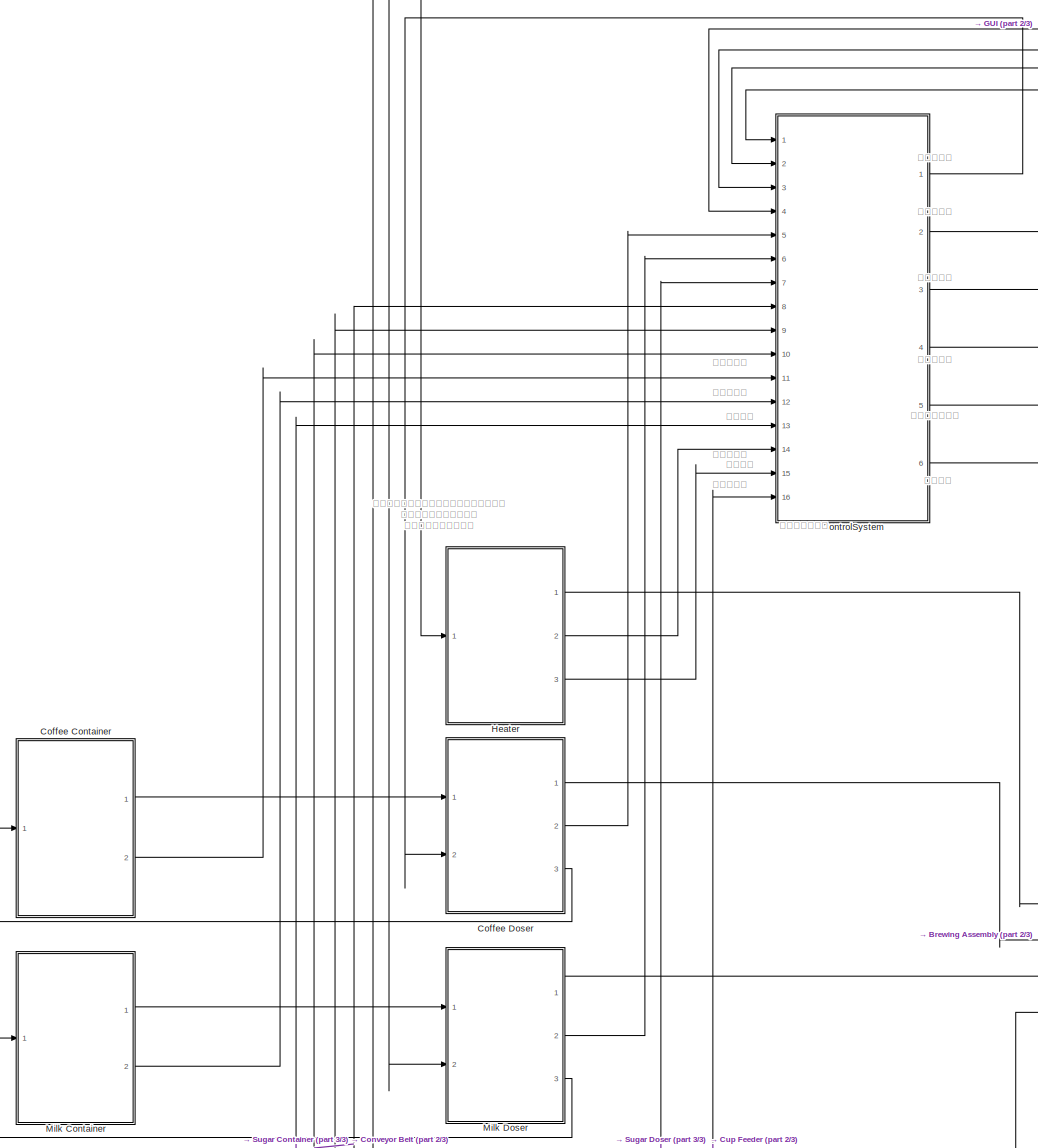
[diagram: root canvas - part 1/3, middle left region]
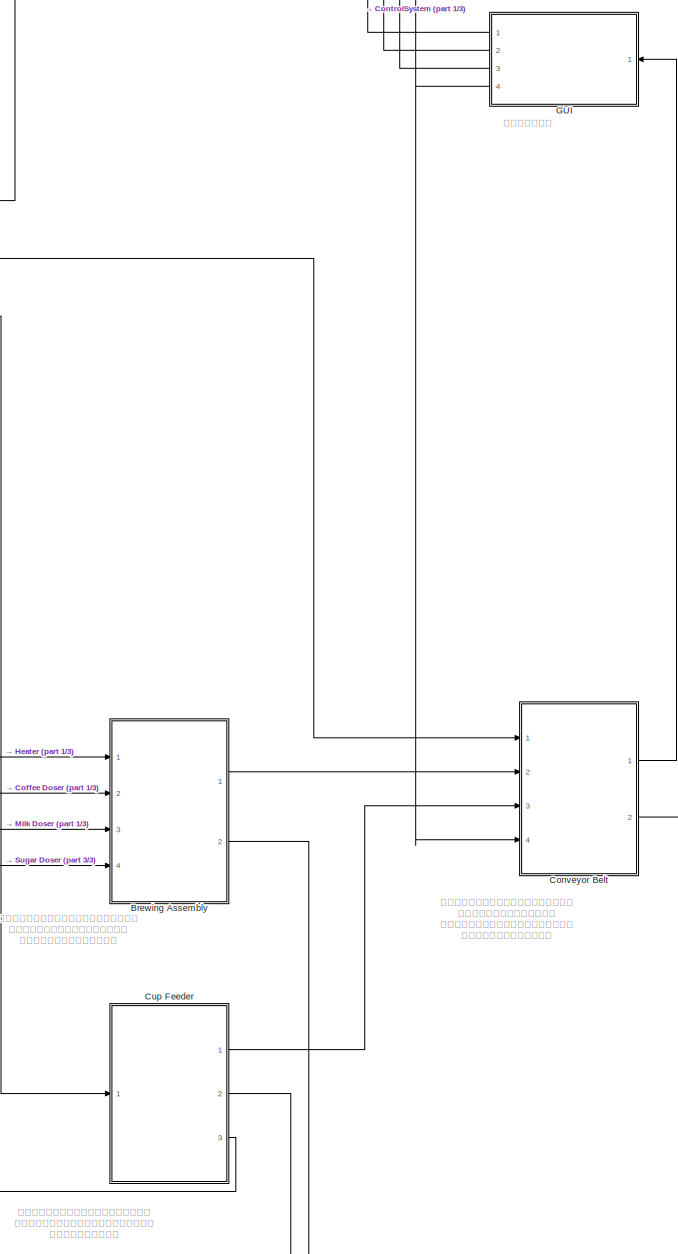
[diagram: root canvas - part 2/3, right side, full height]
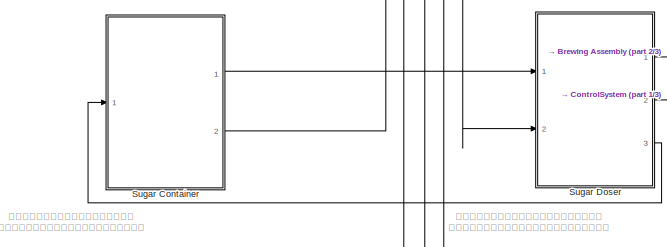
[diagram: root canvas - part 3/3, bottom left region]
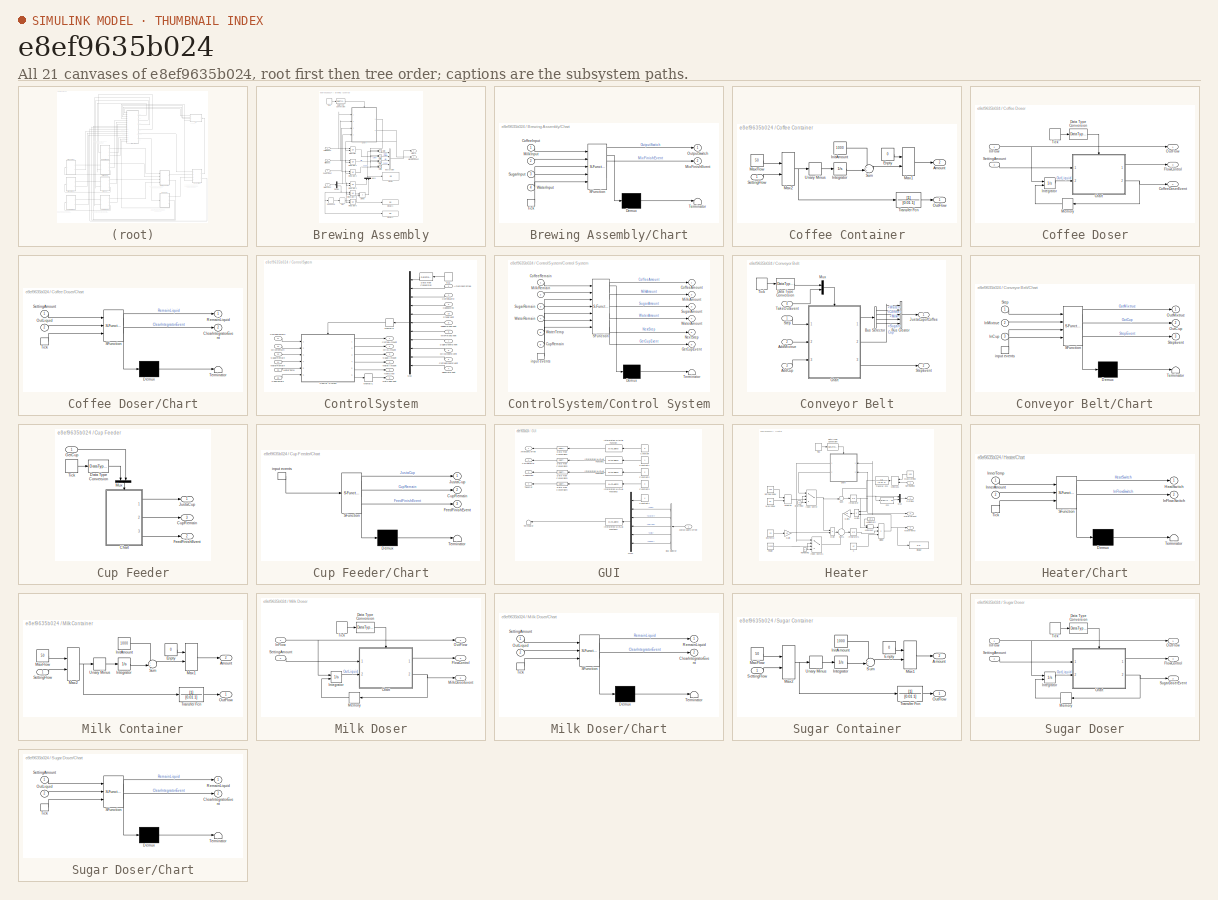
[diagram: thumbnail index - all 21 canvases of the model, root first then tree order]
MODEL slx_e8ef9635b024
KIND model
CONFIG AbsTol = auto
CONFIG EnableMultiTasking = off
CONFIG FixedStep = auto
CONFIG MaxStep = auto
CONFIG MinStep = auto
CONFIG RelTol = 1e-3
CONFIG SampleTimeConstraint = Unconstrained
CONFIG Solver = ode45
CONFIG SolverName = ode45
CONFIG StartTime = 0.0
CONFIG StopFcn = CoffeeMachineIOSupport('closefig');
CONFIG StopTime = Inf
BLOCK [SubSystem] Brewing Assembly
  Ports = [4, 2]
  RequestExecContextInheritance = off
  Variant = off
BLOCK [BusCreator] Brewing Assembly/Bus Creator
  DisplayOption = bar
  InheritFromInputs = on
  Inputs = 4
  OutDataTypeStr = Bus: Mixtrue
  Ports = [4, 1]
BLOCK [SubSystem] Brewing Assembly/Chart
  ErrorFcn = Stateflow.Translate.translate
  PermitHierarchicalResolution = ExplicitOnly
  Ports = [4, 2, 0, 1]
  RequestExecContextInheritance = off
  SFBlockType = Chart
  TreatAsAtomicUnit = on
  Variant = off
BLOCK [Demux] Brewing Assembly/Chart/ Demux 
  Outputs = 1
  Ports = [1, 1]
BLOCK [S-Function] Brewing Assembly/Chart/ SFunction 
  EnableBusSupport = off
  FunctionName = sf_sfun
  PortCounts = [5 3]
  Ports = [5, 3]
  SFcnIsStateOwnerBlock = off
  SFunctionDeploymentMode = off
  Tag = Stateflow S-Function AllinOne 7
BLOCK [Terminator] Brewing Assembly/Chart/ Terminator 
BLOCK [Inport] Brewing Assembly/Chart/CoffeeInput
  IconDisplay = Port number
BLOCK [Inport] Brewing Assembly/Chart/MilkInput
  IconDisplay = Port number
  Port = 2
BLOCK [Outport] Brewing Assembly/Chart/MixFinishEvent
  IconDisplay = Port number
  Port = 2
BLOCK [Outport] Brewing Assembly/Chart/OutputSwitch
  IconDisplay = Port number
BLOCK [Inport] Brewing Assembly/Chart/SugarInput
  IconDisplay = Port number
  Port = 3
BLOCK [TriggerPort] Brewing Assembly/Chart/Tick
  Ports = [0, 1]
  ShowOutputPort = on
  StatesWhenEnabling = held
  VariantControl = Variant
BLOCK [Inport] Brewing Assembly/Chart/WaterInput
  IconDisplay = Port number
  Port = 4
BLOCK [Inport] Brewing Assembly/Coffee Input
  IconDisplay = Port number
  Port = 2
BLOCK [DataTypeConversion] Brewing Assembly/Data Type Conversion
  OutDataTypeStr = boolean
  RndMeth = Floor
  SaturateOnIntegerOverflow = off
BLOCK [DeadZone] Brewing Assembly/Dead Zone
  LowerValue = -1e-5
  UpperValue = 1e-5
BLOCK [Demux] Brewing Assembly/Demux
  DisplayOption = bar
  Outputs = 2
  Ports = [1, 2]
BLOCK [Display] Brewing Assembly/Display
  Decimation = 1
  Ports = [1]
BLOCK [Display] Brewing Assembly/Display1
  Decimation = 1
  Ports = [1]
BLOCK [Display] Brewing Assembly/Display2
  Decimation = 1
  Ports = [1]
BLOCK [Product] Brewing Assembly/Divide
  InputSameDT = off
  Inputs = */
  OutDataTypeStr = Inherit: Inherit via internal rule
  Ports = [2, 1]
  RndMeth = Floor
  SaturateOnIntegerOverflow = off
BLOCK [Integrator] Brewing Assembly/Integrator
  ExternalReset = rising
  Ports = [2, 1]
BLOCK [Integrator] Brewing Assembly/Integrator1
  ExternalReset = rising
  Ports = [2, 1]
BLOCK [Integrator] Brewing Assembly/Integrator2
  ExternalReset = rising
  Ports = [2, 1]
BLOCK [Integrator] Brewing Assembly/Integrator3
  ExternalReset = rising
  Ports = [2, 1]
BLOCK [Integrator] Brewing Assembly/Integrator4
  ExternalReset = rising
  Ports = [2, 1]
BLOCK [Integrator] Brewing Assembly/Integrator5
  ExternalReset = rising
  Ports = [2, 1]
BLOCK [Inport] Brewing Assembly/Milk Input
  IconDisplay = Port number
  Port = 3
BLOCK [Outport] Brewing Assembly/MixFinishEvent
  IconDisplay = Port number
  Port = 2
BLOCK [Outport] Brewing Assembly/Mixture
  IconDisplay = Port number
  OutDataTypeStr = Bus: Mixtrue
BLOCK [Product] Brewing Assembly/Multi
  InputSameDT = off
  Inputs = **
  OutDataTypeStr = Inherit: Inherit via internal rule
  Ports = [2, 1]
  RndMeth = Floor
  SaturateOnIntegerOverflow = off
BLOCK [Product] Brewing Assembly/Multi1
  InputSameDT = off
  Inputs = **
  OutDataTypeStr = Inherit: Inherit via internal rule
  Ports = [2, 1]
  RndMeth = Floor
  SaturateOnIntegerOverflow = off
BLOCK [Product] Brewing Assembly/Multi2
  InputSameDT = off
  Inputs = **
  OutDataTypeStr = Inherit: Inherit via internal rule
  Ports = [2, 1]
  RndMeth = Floor
  SaturateOnIntegerOverflow = off
BLOCK [Product] Brewing Assembly/Multi3
  InputSameDT = off
  Inputs = **
  OutDataTypeStr = Inherit: Inherit via internal rule
  Ports = [2, 1]
  RndMeth = Floor
  SaturateOnIntegerOverflow = off
BLOCK [Mux] Brewing Assembly/Mux1
  DisplayOption = bar
  Inputs = 2
  Ports = [2, 1]
BLOCK [Signum] Brewing Assembly/Sign
BLOCK [Inport] Brewing Assembly/Sugar Input
  IconDisplay = Port number
  Port = 4
BLOCK [DiscretePulseGenerator] Brewing Assembly/Tick
  Period = 0.01
  Ports = [0, 1]
  PulseType = Time based
  PulseWidth = 50
BLOCK [Inport] Brewing Assembly/Water Input
  IconDisplay = Port number
BLOCK [SubSystem] Coffee Container
  Ports = [1, 2]
  RequestExecContextInheritance = off
  Variant = off
BLOCK [Outport] Coffee Container/Amount
  IconDisplay = Port number
  Port = 2
BLOCK [Constant] Coffee Container/Enpty
  Value = 0
BLOCK [Constant] Coffee Container/InitAmount
  Value = 1000
BLOCK [Integrator] Coffee Container/Integrator
  Ports = [1, 1]
BLOCK [MinMax] Coffee Container/Max1
  Function = max
  InputSameDT = off
  Inputs = 2
  Ports = [2, 1]
  SaturateOnIntegerOverflow = off
BLOCK [MinMax] Coffee Container/Max2
  InputSameDT = off
  Inputs = 2
  OutMin = [0]
  Ports = [2, 1]
  SaturateOnIntegerOverflow = off
BLOCK [Constant] Coffee Container/MaxFlow
  Value = 50
BLOCK [Outport] Coffee Container/OutFlow
  IconDisplay = Port number
BLOCK [Inport] Coffee Container/SettingFlow
  IconDisplay = Port number
BLOCK [Sum] Coffee Container/Sum
  IconShape = round
  InputSameDT = off
  Inputs = ++|
  OutDataTypeStr = Inherit: Inherit via internal rule
  Ports = [2, 1]
  SaturateOnIntegerOverflow = off
BLOCK [TransferFcn] Coffee Container/Transfer Fcn
  Denominator = [0.01 1]
BLOCK [UnaryMinus] Coffee Container/Unary Minus
BLOCK [SubSystem] Coffee Doser
  Ports = [2, 3]
  RequestExecContextInheritance = off
  Variant = off
BLOCK [SubSystem] Coffee Doser/Chart
  ErrorFcn = Stateflow.Translate.translate
  PermitHierarchicalResolution = ExplicitOnly
  Ports = [2, 2, 0, 1]
  RequestExecContextInheritance = off
  SFBlockType = Chart
  TreatAsAtomicUnit = on
  Variant = off
BLOCK [Demux] Coffee Doser/Chart/ Demux 
  Outputs = 1
  Ports = [1, 1]
BLOCK [S-Function] Coffee Doser/Chart/ SFunction 
  EnableBusSupport = off
  FunctionName = sf_sfun
  PortCounts = [3 3]
  Ports = [3, 3]
  SFcnIsStateOwnerBlock = off
  SFunctionDeploymentMode = off
  Tag = Stateflow S-Function AllinOne 4
BLOCK [Terminator] Coffee Doser/Chart/ Terminator 
BLOCK [Outport] Coffee Doser/Chart/ClearIntegratorEvent
  IconDisplay = Port number
  Port = 2
BLOCK [Inport] Coffee Doser/Chart/OutLiquid
  IconDisplay = Port number
  Port = 2
BLOCK [Outport] Coffee Doser/Chart/RemainLiquid
  IconDisplay = Port number
BLOCK [Inport] Coffee Doser/Chart/SettingAmount
  IconDisplay = Port number
BLOCK [TriggerPort] Coffee Doser/Chart/Tick
  Ports = [0, 1]
  ShowOutputPort = on
  StatesWhenEnabling = held
  VariantControl = Variant
BLOCK [Outport] Coffee Doser/CoffeeDoserEvent
  IconDisplay = Port number
  Port = 2
BLOCK [DataTypeConversion] Coffee Doser/Data Type Conversion
  OutDataTypeStr = boolean
  RndMeth = Floor
  SaturateOnIntegerOverflow = off
BLOCK [Outport] Coffee Doser/FlowControl
  IconDisplay = Port number
  Port = 3
BLOCK [Inport] Coffee Doser/InFlow
  IconDisplay = Port number
BLOCK [Integrator] Coffee Doser/Integrator
  ExternalReset = rising
  Ports = [2, 1]
BLOCK [Memory] Coffee Doser/Memory
BLOCK [Outport] Coffee Doser/OutFlow
  IconDisplay = Port number
BLOCK [Inport] Coffee Doser/SettingAmount
  IconDisplay = Port number
  Port = 2
BLOCK [DiscretePulseGenerator] Coffee Doser/Tick
  Period = 0.01
  Ports = [0, 1]
  PulseType = Time based
  PulseWidth = 50
BLOCK [SubSystem] ControlSystem
  Ports = [16, 6]
  RequestExecContextInheritance = off
  Variant = off
BLOCK [Inport] ControlSystem/AmericanCoffee
  IconDisplay = Port number
BLOCK [Inport] ControlSystem/Cappuccino
  IconDisplay = Port number
  Port = 3
BLOCK [Outport] ControlSystem/CoffeeAmount
  IconDisplay = Port number
BLOCK [Inport] ControlSystem/CoffeeDoserEvent
  IconDisplay = Port number
  Port = 5
BLOCK [Inport] ControlSystem/CoffeeLatte
  IconDisplay = Port number
  Port = 2
BLOCK [Inport] ControlSystem/CoffeeRemain
  IconDisplay = Port number
  Port = 11
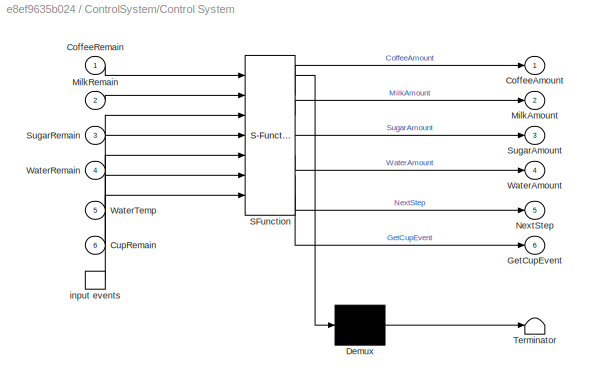
BLOCK [SubSystem] ControlSystem/Control System
  ErrorFcn = Stateflow.Translate.translate
  PermitHierarchicalResolution = ExplicitOnly
  Ports = [6, 6, 0, 1]
  RequestExecContextInheritance = off
  SFBlockType = Chart
  TreatAsAtomicUnit = on
  Variant = off
BLOCK [Demux] ControlSystem/Control System/ Demux 
  Outputs = 1
  Ports = [1, 1]
BLOCK [S-Function] ControlSystem/Control System/ SFunction 
  EnableBusSupport = off
  FunctionName = sf_sfun
  PortCounts = [7 7]
  Ports = [7, 7]
  SFcnIsStateOwnerBlock = off
  SFunctionDeploymentMode = off
  Tag = Stateflow S-Function AllinOne 12
BLOCK [Terminator] ControlSystem/Control System/ Terminator 
BLOCK [TriggerPort] ControlSystem/Control System/ input events 
  Ports = [0, 1]
  ShowOutputPort = on
  StatesWhenEnabling = held
  VariantControl = Variant
BLOCK [Outport] ControlSystem/Control System/CoffeeAmount
  IconDisplay = Port number
BLOCK [Inport] ControlSystem/Control System/CoffeeRemain
  IconDisplay = Port number
BLOCK [Inport] ControlSystem/Control System/CupRemain
  IconDisplay = Port number
  Port = 6
BLOCK [Outport] ControlSystem/Control System/GetCupEvent
  IconDisplay = Port number
  Port = 6
BLOCK [Outport] ControlSystem/Control System/MilkAmount
  IconDisplay = Port number
  Port = 2
BLOCK [Inport] ControlSystem/Control System/MilkRemain
  IconDisplay = Port number
  Port = 2
BLOCK [Outport] ControlSystem/Control System/NextStep
  IconDisplay = Port number
  Port = 5
BLOCK [Outport] ControlSystem/Control System/SugarAmount
  IconDisplay = Port number
  Port = 3
BLOCK [Inport] ControlSystem/Control System/SugarRemain
  IconDisplay = Port number
  Port = 3
BLOCK [Outport] ControlSystem/Control System/WaterAmount
  IconDisplay = Port number
  Port = 4
BLOCK [Inport] ControlSystem/Control System/WaterRemain
  IconDisplay = Port number
  Port = 4
BLOCK [Inport] ControlSystem/Control System/WaterTemp
  IconDisplay = Port number
  Port = 5
BLOCK [Inport] ControlSystem/CupRemain
  IconDisplay = Port number
  Port = 16
BLOCK [DataTypeConversion] ControlSystem/Data Type Conversion
  OutDataTypeStr = boolean
  RndMeth = Floor
  SaturateOnIntegerOverflow = off
BLOCK [Inport] ControlSystem/FeedFinishEvent
  IconDisplay = Port number
  Port = 8
BLOCK [Outport] ControlSystem/GetCupEvent
  IconDisplay = Port number
  Port = 6
BLOCK [Memory] ControlSystem/Memory1
BLOCK [Memory] ControlSystem/Memory2
BLOCK [Outport] ControlSystem/MilkAmount
  IconDisplay = Port number
  Port = 2
BLOCK [Inport] ControlSystem/MilkDoserEvent
  IconDisplay = Port number
  Port = 6
BLOCK [Inport] ControlSystem/MilkRemain
  IconDisplay = Port number
  Port = 12
BLOCK [Inport] ControlSystem/MixFinishEvent
  IconDisplay = Port number
  Port = 9
BLOCK [Mux] ControlSystem/Mux
  DisplayOption = bar
  Inputs = 11
  Ports = [11, 1]
BLOCK [Outport] ControlSystem/NextStep
  IconDisplay = Port number
  Port = 5
BLOCK [Inport] ControlSystem/StepEvent
  IconDisplay = Port number
  Port = 10
BLOCK [Outport] ControlSystem/SugarAmount
  IconDisplay = Port number
  Port = 3
BLOCK [Inport] ControlSystem/SugarDoserEvent
  IconDisplay = Port number
  Port = 7
BLOCK [Inport] ControlSystem/SugarRemain
  IconDisplay = Port number
  Port = 13
BLOCK [Inport] ControlSystem/TakeOutEvent
  IconDisplay = Port number
  Port = 4
BLOCK [DiscretePulseGenerator] ControlSystem/Tick
  Period = 0.01
  Ports = [0, 1]
  PulseType = Time based
  PulseWidth = 50
BLOCK [Outport] ControlSystem/WaterAmount
  IconDisplay = Port number
  Port = 4
BLOCK [Inport] ControlSystem/WaterRemain
  IconDisplay = Port number
  Port = 14
BLOCK [Inport] ControlSystem/WaterTemp
  IconDisplay = Port number
  Port = 15
BLOCK [SubSystem] Conveyor Belt
  Ports = [4, 2]
  RequestExecContextInheritance = off
  Variant = off
BLOCK [Inport] Conveyor Belt/AddCup
  IconDisplay = Port number
  Port = 3
BLOCK [Inport] Conveyor Belt/AddMixtrue
  IconDisplay = Port number
  Port = 2
BLOCK [BusCreator] Conveyor Belt/Bus Creator
  DisplayOption = bar
  InheritFromInputs = on
  Inputs = 5
  Ports = [5, 1]
BLOCK [BusSelector] Conveyor Belt/Bus Selector
  OutputAsBus = off
  OutputSignals = Water,Coffee,Milk,Sugar
  Ports = [1, 4]
BLOCK [SubSystem] Conveyor Belt/Chart
  ErrorFcn = Stateflow.Translate.translate
  PermitHierarchicalResolution = ExplicitOnly
  Ports = [3, 3, 0, 1]
  RequestExecContextInheritance = off
  SFBlockType = Chart
  TreatAsAtomicUnit = on
  Variant = off
BLOCK [Demux] Conveyor Belt/Chart/ Demux 
  Outputs = 1
  Ports = [1, 1]
BLOCK [S-Function] Conveyor Belt/Chart/ SFunction 
  EnableBusSupport = off
  FunctionName = sf_sfun
  PortCounts = [4 4]
  Ports = [4, 4]
  SFcnIsStateOwnerBlock = off
  SFunctionDeploymentMode = off
  Tag = Stateflow S-Function AllinOne 1
BLOCK [Terminator] Conveyor Belt/Chart/ Terminator 
BLOCK [TriggerPort] Conveyor Belt/Chart/ input events 
  Ports = [0, 1]
  ShowOutputPort = on
  StatesWhenEnabling = held
  VariantControl = Variant
BLOCK [Inport] Conveyor Belt/Chart/InCup
  IconDisplay = Port number
  Port = 3
BLOCK [Inport] Conveyor Belt/Chart/InMixtrue
  IconDisplay = Port number
  Port = 2
BLOCK [Outport] Conveyor Belt/Chart/OutCup
  IconDisplay = Port number
  Port = 2
BLOCK [Outport] Conveyor Belt/Chart/OutMixtrue
  IconDisplay = Port number
BLOCK [Inport] Conveyor Belt/Chart/Step
  IconDisplay = Port number
BLOCK [Outport] Conveyor Belt/Chart/StepEvent
  IconDisplay = Port number
  Port = 3
BLOCK [DataTypeConversion] Conveyor Belt/Data Type Conversion
  OutDataTypeStr = boolean
  RndMeth = Floor
  SaturateOnIntegerOverflow = off
BLOCK [Outport] Conveyor Belt/JustaCupofCoffee
  IconDisplay = Port number
  OutDataTypeStr = Bus: aCupofCoffee
BLOCK [Mux] Conveyor Belt/Mux
  DisplayOption = bar
  Inputs = 2
  Ports = [2, 1]
BLOCK [Inport] Conveyor Belt/Step
  IconDisplay = Port number
BLOCK [Outport] Conveyor Belt/StepEvent
  IconDisplay = Port number
  Port = 2
BLOCK [Inport] Conveyor Belt/TakeOutEvent
  IconDisplay = Port number
  Port = 4
BLOCK [DiscretePulseGenerator] Conveyor Belt/Tick
  Period = 0.01
  Ports = [0, 1]
  PulseType = Time based
  PulseWidth = 50
BLOCK [SubSystem] Cup Feeder
  Ports = [1, 3]
  RequestExecContextInheritance = off
  Variant = off
BLOCK [SubSystem] Cup Feeder/Chart
  ErrorFcn = Stateflow.Translate.translate
  PermitHierarchicalResolution = ExplicitOnly
  Ports = [0, 3, 0, 1]
  RequestExecContextInheritance = off
  SFBlockType = Chart
  TreatAsAtomicUnit = on
  Variant = off
BLOCK [Demux] Cup Feeder/Chart/ Demux 
  Outputs = 1
  Ports = [1, 1]
BLOCK [S-Function] Cup Feeder/Chart/ SFunction 
  EnableBusSupport = off
  FunctionName = sf_sfun
  PortCounts = [1 4]
  Ports = [1, 4]
  SFcnIsStateOwnerBlock = off
  SFunctionDeploymentMode = off
  Tag = Stateflow S-Function AllinOne 5
BLOCK [Terminator] Cup Feeder/Chart/ Terminator 
BLOCK [TriggerPort] Cup Feeder/Chart/ input events 
  Ports = [0, 1]
  ShowOutputPort = on
  StatesWhenEnabling = held
  VariantControl = Variant
BLOCK [Outport] Cup Feeder/Chart/CupRemain
  IconDisplay = Port number
  Port = 2
BLOCK [Outport] Cup Feeder/Chart/FeedFinishEvent
  IconDisplay = Port number
  Port = 3
BLOCK [Outport] Cup Feeder/Chart/JustaCup
  IconDisplay = Port number
BLOCK [Outport] Cup Feeder/CupRemain
  IconDisplay = Port number
  Port = 3
BLOCK [DataTypeConversion] Cup Feeder/Data Type Conversion
  OutDataTypeStr = boolean
  RndMeth = Floor
  SaturateOnIntegerOverflow = off
BLOCK [Outport] Cup Feeder/FeedFinishEvent
  IconDisplay = Port number
  Port = 2
BLOCK [Inport] Cup Feeder/GetCup
  IconDisplay = Port number
BLOCK [Outport] Cup Feeder/JustaCup
  IconDisplay = Port number
BLOCK [Mux] Cup Feeder/Mux
  DisplayOption = bar
  Inputs = 2
  Ports = [2, 1]
BLOCK [DiscretePulseGenerator] Cup Feeder/Tick
  Period = 0.01
  Ports = [0, 1]
  PulseType = Time based
  PulseWidth = 50
BLOCK [SubSystem] GUI
  Ports = [1, 4]
  RequestExecContextInheritance = off
  Variant = off
BLOCK [Outport] GUI/AmericanCoffee
  IconDisplay = Port number
BLOCK [BusSelector] GUI/Bus Selector
  OutputAsBus = off
  OutputSignals = Cup,Water,Coffee,Milk,Sugar
  Ports = [1, 5]
BLOCK [Outport] GUI/Cappuccino
  IconDisplay = Port number
  Port = 3
BLOCK [Outport] GUI/CoffeeLatte
  IconDisplay = Port number
  Port = 2
BLOCK [Constant] GUI/Constant
  Value = 0
BLOCK [Constant] GUI/Constant1
BLOCK [Constant] GUI/Constant2
  Value = 2
BLOCK [Constant] GUI/Constant3
  Value = 3
BLOCK [Constant] GUI/Constant4
  Value = 4
BLOCK [DataTypeConversion] GUI/Data Type Conversion1
  OutDataTypeStr = boolean
  RndMeth = Floor
  SaturateOnIntegerOverflow = off
BLOCK [DataTypeConversion] GUI/Data Type Conversion2
  OutDataTypeStr = boolean
  RndMeth = Floor
  SaturateOnIntegerOverflow = off
BLOCK [DataTypeConversion] GUI/Data Type Conversion3
  OutDataTypeStr = boolean
  RndMeth = Floor
  SaturateOnIntegerOverflow = off
BLOCK [DataTypeConversion] GUI/Data Type Conversion4
  OutDataTypeStr = boolean
  RndMeth = Floor
  SaturateOnIntegerOverflow = off
BLOCK [MATLABFcn] GUI/Interpreted MATLAB Function
  MATLABFcn = CoffeeMachineIOSupport
  Ports = [1, 1]
BLOCK [MATLABFcn] GUI/Interpreted MATLAB Function1
  MATLABFcn = CoffeeMachineIOSupport
  Ports = [1, 1]
BLOCK [MATLABFcn] GUI/Interpreted MATLAB Function2
  MATLABFcn = CoffeeMachineIOSupport
  Ports = [1, 1]
BLOCK [MATLABFcn] GUI/Interpreted MATLAB Function3
  MATLABFcn = CoffeeMachineIOSupport
  Ports = [1, 1]
BLOCK [MATLABFcn] GUI/Interpreted MATLAB Function4
  MATLABFcn = CoffeeMachineIOSupport
  Ports = [1, 1]
BLOCK [Inport] GUI/JustaCupofCoffee
  IconDisplay = Port number
BLOCK [Mux] GUI/Mux1
  DisplayOption = bar
  Inputs = 6
  Ports = [6, 1]
BLOCK [Outport] GUI/TakeOut
  IconDisplay = Port number
  Port = 4
BLOCK [Terminator] GUI/Terminator
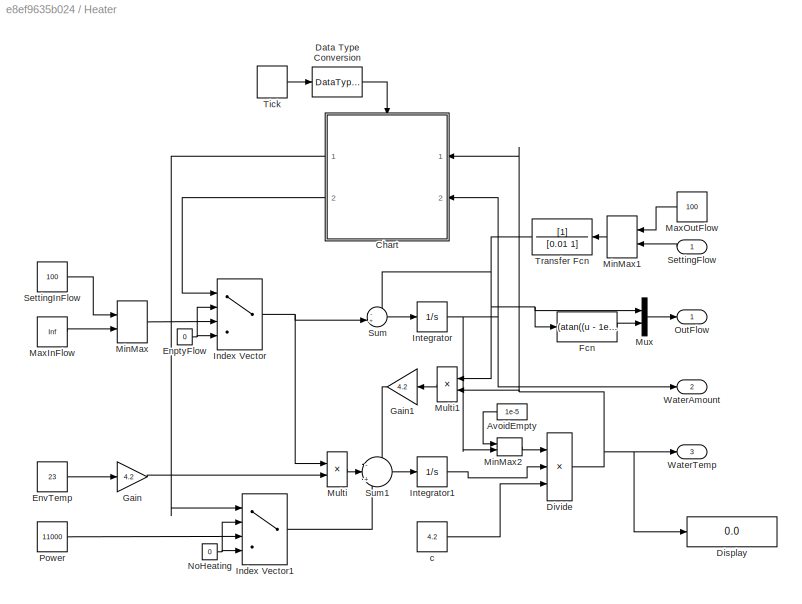
BLOCK [SubSystem] Heater
  Ports = [1, 3]
  RequestExecContextInheritance = off
  Variant = off
BLOCK [Constant] Heater/AvoidEmpty
  Value = 1e-5
BLOCK [SubSystem] Heater/Chart
  ErrorFcn = Stateflow.Translate.translate
  PermitHierarchicalResolution = ExplicitOnly
  Ports = [2, 2, 0, 1]
  RequestExecContextInheritance = off
  SFBlockType = Chart
  TreatAsAtomicUnit = on
  Variant = off
BLOCK [Demux] Heater/Chart/ Demux 
  Outputs = 1
  Ports = [1, 1]
BLOCK [S-Function] Heater/Chart/ SFunction 
  EnableBusSupport = off
  FunctionName = sf_sfun
  PortCounts = [3 3]
  Ports = [3, 3]
  SFcnIsStateOwnerBlock = off
  SFunctionDeploymentMode = off
  Tag = Stateflow S-Function AllinOne 6
BLOCK [Terminator] Heater/Chart/ Terminator 
BLOCK [Outport] Heater/Chart/HeatSwitch
  IconDisplay = Port number
BLOCK [Outport] Heater/Chart/InFlowSwitch
  IconDisplay = Port number
  Port = 2
BLOCK [Inport] Heater/Chart/InnerAmount
  IconDisplay = Port number
  Port = 2
BLOCK [Inport] Heater/Chart/InnerTemp
  IconDisplay = Port number
BLOCK [TriggerPort] Heater/Chart/Tick
  Ports = [0, 1]
  ShowOutputPort = on
  StatesWhenEnabling = held
  VariantControl = Variant
BLOCK [DataTypeConversion] Heater/Data Type Conversion
  OutDataTypeStr = boolean
  RndMeth = Floor
  SaturateOnIntegerOverflow = off
BLOCK [Display] Heater/Display
  Decimation = 1
  Ports = [1]
BLOCK [Product] Heater/Divide
  InputSameDT = off
  Inputs = /*/
  OutDataTypeStr = Inherit: Inherit via internal rule
  Ports = [3, 1]
  RndMeth = Floor
  SaturateOnIntegerOverflow = off
BLOCK [Constant] Heater/EnptyFlow
  Value = 0
BLOCK [Constant] Heater/EnvTemp
  Value = 23
BLOCK [Fcn] Heater/Fcn
  Expr = (atan((u - 1e-5)*inf) + pi / 2) / pi * 100
BLOCK [Gain] Heater/Gain
  Gain = 4.2
  OutDataTypeStr = Inherit: Inherit via internal rule
  ParamDataTypeStr = Inherit: Inherit via internal rule
  SaturateOnIntegerOverflow = off
BLOCK [Gain] Heater/Gain1
  Gain = 4.2
  OutDataTypeStr = Inherit: Inherit via internal rule
  ParamDataTypeStr = Inherit: Inherit via internal rule
  SaturateOnIntegerOverflow = off
BLOCK [MultiPortSwitch] Heater/Index Vector
  DataPortForDefault = Additional data port
  DataPortOrder = Zero-based contiguous
  DiagnosticForDefault = None
  InputSameDT = off
  Inputs = 2
  Ports = [4, 1]
  SaturateOnIntegerOverflow = off
  zeroidx = on
BLOCK [MultiPortSwitch] Heater/Index Vector1
  DataPortForDefault = Additional data port
  DataPortOrder = Zero-based contiguous
  DiagnosticForDefault = None
  InputSameDT = off
  Inputs = 2
  Ports = [4, 1]
  SaturateOnIntegerOverflow = off
  zeroidx = on
BLOCK [Integrator] Heater/Integrator
  Ports = [1, 1]
BLOCK [Integrator] Heater/Integrator1
  Ports = [1, 1]
BLOCK [Constant] Heater/MaxInFlow
  Value = Inf
BLOCK [Constant] Heater/MaxOutFlow
  Value = 100
BLOCK [MinMax] Heater/MinMax
  InputSameDT = off
  Inputs = 2
  Ports = [2, 1]
  SaturateOnIntegerOverflow = off
BLOCK [MinMax] Heater/MinMax1
  InputSameDT = off
  Inputs = 2
  Ports = [2, 1]
  SaturateOnIntegerOverflow = off
BLOCK [MinMax] Heater/MinMax2
  Function = max
  InputSameDT = off
  Inputs = 2
  Ports = [2, 1]
  SaturateOnIntegerOverflow = off
BLOCK [Product] Heater/Multi
  InputSameDT = off
  Inputs = **
  OutDataTypeStr = Inherit: Inherit via internal rule
  Ports = [2, 1]
  RndMeth = Floor
  SaturateOnIntegerOverflow = off
BLOCK [Product] Heater/Multi1
  InputSameDT = off
  Inputs = **
  OutDataTypeStr = Inherit: Inherit via internal rule
  Ports = [2, 1]
  RndMeth = Floor
  SaturateOnIntegerOverflow = off
BLOCK [Mux] Heater/Mux
  DisplayOption = bar
  Inputs = 2
  Ports = [2, 1]
BLOCK [Constant] Heater/NoHeating
  Value = 0
BLOCK [Outport] Heater/OutFlow
  IconDisplay = Port number
BLOCK [Constant] Heater/Power
  Value = 11000
BLOCK [Inport] Heater/SettingFlow
  IconDisplay = Port number
BLOCK [Constant] Heater/SettingInFlow
  Value = 100
BLOCK [Sum] Heater/Sum
  IconShape = round
  InputSameDT = off
  Inputs = -+|
  OutDataTypeStr = Inherit: Inherit via internal rule
  Ports = [2, 1]
  SaturateOnIntegerOverflow = off
BLOCK [Sum] Heater/Sum1
  IconShape = round
  InputSameDT = off
  Inputs = -|+|+
  OutDataTypeStr = Inherit: Inherit via internal rule
  Ports = [3, 1]
  SaturateOnIntegerOverflow = off
BLOCK [DiscretePulseGenerator] Heater/Tick
  Period = 0.01
  Ports = [0, 1]
  PulseType = Time based
  PulseWidth = 50
BLOCK [TransferFcn] Heater/Transfer Fcn
  Denominator = [0.01 1]
BLOCK [Outport] Heater/WaterAmount
  IconDisplay = Port number
  Port = 2
BLOCK [Outport] Heater/WaterTemp
  IconDisplay = Port number
  Port = 3
BLOCK [Constant] Heater/c
  Value = 4.2
BLOCK [SubSystem] Milk Container
  Ports = [1, 2]
  RequestExecContextInheritance = off
  Variant = off
BLOCK [Outport] Milk Container/Amount
  IconDisplay = Port number
  Port = 2
BLOCK [Constant] Milk Container/Enpty
  Value = 0
BLOCK [Constant] Milk Container/InitAmount
  Value = 1000
BLOCK [Integrator] Milk Container/Integrator
  Ports = [1, 1]
BLOCK [MinMax] Milk Container/Max1
  Function = max
  InputSameDT = off
  Inputs = 2
  Ports = [2, 1]
  SaturateOnIntegerOverflow = off
BLOCK [MinMax] Milk Container/Max2
  InputSameDT = off
  Inputs = 2
  OutMin = [0]
  Ports = [2, 1]
  SaturateOnIntegerOverflow = off
BLOCK [Constant] Milk Container/MaxFlow
  Value = 50
BLOCK [Outport] Milk Container/OutFlow
  IconDisplay = Port number
BLOCK [Inport] Milk Container/SettingFlow
  IconDisplay = Port number
BLOCK [Sum] Milk Container/Sum
  IconShape = round
  InputSameDT = off
  Inputs = ++|
  OutDataTypeStr = Inherit: Inherit via internal rule
  Ports = [2, 1]
  SaturateOnIntegerOverflow = off
BLOCK [TransferFcn] Milk Container/Transfer Fcn
  Denominator = [0.01 1]
BLOCK [UnaryMinus] Milk Container/Unary Minus
BLOCK [SubSystem] Milk Doser
  Ports = [2, 3]
  RequestExecContextInheritance = off
  Variant = off
BLOCK [SubSystem] Milk Doser/Chart
  ErrorFcn = Stateflow.Translate.translate
  PermitHierarchicalResolution = ExplicitOnly
  Ports = [2, 2, 0, 1]
  RequestExecContextInheritance = off
  SFBlockType = Chart
  TreatAsAtomicUnit = on
  Variant = off
BLOCK [Demux] Milk Doser/Chart/ Demux 
  Outputs = 1
  Ports = [1, 1]
BLOCK [S-Function] Milk Doser/Chart/ SFunction 
  EnableBusSupport = off
  FunctionName = sf_sfun
  PortCounts = [3 3]
  Ports = [3, 3]
  SFcnIsStateOwnerBlock = off
  SFunctionDeploymentMode = off
  Tag = Stateflow S-Function AllinOne 2
BLOCK [Terminator] Milk Doser/Chart/ Terminator 
BLOCK [Outport] Milk Doser/Chart/ClearIntegratorEvent
  IconDisplay = Port number
  Port = 2
BLOCK [Inport] Milk Doser/Chart/OutLiquid
  IconDisplay = Port number
  Port = 2
BLOCK [Outport] Milk Doser/Chart/RemainLiquid
  IconDisplay = Port number
BLOCK [Inport] Milk Doser/Chart/SettingAmount
  IconDisplay = Port number
BLOCK [TriggerPort] Milk Doser/Chart/Tick
  Ports = [0, 1]
  ShowOutputPort = on
  StatesWhenEnabling = held
  VariantControl = Variant
BLOCK [DataTypeConversion] Milk Doser/Data Type Conversion
  OutDataTypeStr = boolean
  RndMeth = Floor
  SaturateOnIntegerOverflow = off
BLOCK [Outport] Milk Doser/FlowControl
  IconDisplay = Port number
  Port = 3
BLOCK [Inport] Milk Doser/InFlow
  IconDisplay = Port number
BLOCK [Integrator] Milk Doser/Integrator
  ExternalReset = rising
  Ports = [2, 1]
BLOCK [Memory] Milk Doser/Memory
BLOCK [Outport] Milk Doser/MilkDoserEvent
  IconDisplay = Port number
  Port = 2
BLOCK [Outport] Milk Doser/OutFlow
  IconDisplay = Port number
BLOCK [Inport] Milk Doser/SettingAmount
  IconDisplay = Port number
  Port = 2
BLOCK [DiscretePulseGenerator] Milk Doser/Tick
  Period = 0.01
  Ports = [0, 1]
  PulseType = Time based
  PulseWidth = 50
BLOCK [SubSystem] Sugar Container
  Ports = [1, 2]
  RequestExecContextInheritance = off
  Variant = off
BLOCK [Outport] Sugar Container/Amount
  IconDisplay = Port number
  Port = 2
BLOCK [Constant] Sugar Container/Enpty
  Value = 0
BLOCK [Constant] Sugar Container/InitAmount
  Value = 1000
BLOCK [Integrator] Sugar Container/Integrator
  Ports = [1, 1]
BLOCK [MinMax] Sugar Container/Max1
  Function = max
  InputSameDT = off
  Inputs = 2
  Ports = [2, 1]
  SaturateOnIntegerOverflow = off
BLOCK [MinMax] Sugar Container/Max2
  InputSameDT = off
  Inputs = 2
  OutMin = [0]
  Ports = [2, 1]
  SaturateOnIntegerOverflow = off
BLOCK [Constant] Sugar Container/MaxFlow
  Value = 50
BLOCK [Outport] Sugar Container/OutFlow
  IconDisplay = Port number
BLOCK [Inport] Sugar Container/SettingFlow
  IconDisplay = Port number
BLOCK [Sum] Sugar Container/Sum
  IconShape = round
  InputSameDT = off
  Inputs = ++|
  OutDataTypeStr = Inherit: Inherit via internal rule
  Ports = [2, 1]
  SaturateOnIntegerOverflow = off
BLOCK [TransferFcn] Sugar Container/Transfer Fcn
  Denominator = [0.01 1]
BLOCK [UnaryMinus] Sugar Container/Unary Minus
BLOCK [SubSystem] Sugar Doser
  Ports = [2, 3]
  RequestExecContextInheritance = off
  Variant = off
BLOCK [SubSystem] Sugar Doser/Chart
  ErrorFcn = Stateflow.Translate.translate
  PermitHierarchicalResolution = ExplicitOnly
  Ports = [2, 2, 0, 1]
  RequestExecContextInheritance = off
  SFBlockType = Chart
  TreatAsAtomicUnit = on
  Variant = off
BLOCK [Demux] Sugar Doser/Chart/ Demux 
  Outputs = 1
  Ports = [1, 1]
BLOCK [S-Function] Sugar Doser/Chart/ SFunction 
  EnableBusSupport = off
  FunctionName = sf_sfun
  PortCounts = [3 3]
  Ports = [3, 3]
  SFcnIsStateOwnerBlock = off
  SFunctionDeploymentMode = off
  Tag = Stateflow S-Function AllinOne 3
BLOCK [Terminator] Sugar Doser/Chart/ Terminator 
BLOCK [Outport] Sugar Doser/Chart/ClearIntegratorEvent
  IconDisplay = Port number
  Port = 2
BLOCK [Inport] Sugar Doser/Chart/OutLiquid
  IconDisplay = Port number
  Port = 2
BLOCK [Outport] Sugar Doser/Chart/RemainLiquid
  IconDisplay = Port number
BLOCK [Inport] Sugar Doser/Chart/SettingAmount
  IconDisplay = Port number
BLOCK [TriggerPort] Sugar Doser/Chart/Tick
  Ports = [0, 1]
  ShowOutputPort = on
  StatesWhenEnabling = held
  VariantControl = Variant
BLOCK [DataTypeConversion] Sugar Doser/Data Type Conversion
  OutDataTypeStr = boolean
  RndMeth = Floor
  SaturateOnIntegerOverflow = off
BLOCK [Outport] Sugar Doser/FlowControl
  IconDisplay = Port number
  Port = 3
BLOCK [Inport] Sugar Doser/InFlow
  IconDisplay = Port number
BLOCK [Integrator] Sugar Doser/Integrator
  ExternalReset = rising
  Ports = [2, 1]
BLOCK [Memory] Sugar Doser/Memory
BLOCK [Outport] Sugar Doser/OutFlow
  IconDisplay = Port number
BLOCK [Inport] Sugar Doser/SettingAmount
  IconDisplay = Port number
  Port = 2
BLOCK [Outport] Sugar Doser/SugarDoserEvent
  IconDisplay = Port number
  Port = 2
BLOCK [DiscretePulseGenerator] Sugar Doser/Tick
  Period = 0.01
  Ports = [0, 1]
  PulseType = Time based
  PulseWidth = 50
ANNOTATION (root): 三个 给料器，接收来自核心控制器的用量控制， 控制容器的输出相应的用量，并向混合装置输出流量
ANNOTATION (root): 取杯器，接受来自核心控制器的取杯控制， 并向其反馈杯子的剩余量以及取杯完成事件， 同时向传送带输送杯子
ANNOTATION (root): 加热器， 接受来自核心控制器的水量控制， 并向其反馈水的剩余值。 同时向混合器输出流量
ANNOTATION (root): 三个容器，接受来自给料器的用量控制， 同时向其输出流量，且向核心控制器反馈剩余量
ANNOTATION (root): 传送带前进步长
ANNOTATION (root): 传送带，接受来自核心控制器的步长控制， 向其反馈传送带传送完成事件， 同时接收混合器的混合物，取杯器的杯子， 以及外部杯子取出完成事件。
ANNOTATION (root): 取杯操作
ANNOTATION (root): 可视化界面接口
ANNOTATION (root): 咖啡剩余量
ANNOTATION (root): 咖啡需求量
ANNOTATION (root): 杯子剩余量
ANNOTATION (root): 核心控制器模块
ANNOTATION (root): 水的剩余量
ANNOTATION (root): 水的温度
ANNOTATION (root): 水的需求量
ANNOTATION (root): 混合装置，接受加热器和给料器的流量输入。 同时向核心控制器反馈混合完成事件， 并向传送带中的杯子输送混合物
ANNOTATION (root): 牛奶剩余量
ANNOTATION (root): 牛奶需求量
ANNOTATION (root): 糖剩余量
ANNOTATION (root): 糖的需求量
LINE Brewing Assembly/Bus Creator:1 -> Brewing Assembly/Mixture:1
NET Brewing Assembly/Chart:1 -> Brewing Assembly/Multi1:1, Brewing Assembly/Multi2:1, Brewing Assembly/Multi3:1, Brewing Assembly/Multi:1
NET Brewing Assembly/Chart:2 -> Brewing Assembly/Integrator1:2, Brewing Assembly/Integrator2:2, Brewing Assembly/Integrator3:2, Brewing Assembly/Integrator4:2, Brewing Assembly/Integrator5:2, Brewing Assembly/Integrator:2, Brewing Assembly/MixFinishEvent:1
NET Brewing Assembly/Coffee Input:1 -> Brewing Assembly/Chart:1, Brewing Assembly/Integrator:1
LINE Brewing Assembly/Data Type Conversion:1 -> Brewing Assembly/Chart:trigger
LINE Brewing Assembly/Dead Zone:1 -> Brewing Assembly/Sign:1
NET Brewing Assembly/Demux:1 -> Brewing Assembly/Chart:4, Brewing Assembly/Integrator3:1
NET Brewing Assembly/Demux:2 -> Brewing Assembly/Dead Zone:1, Brewing Assembly/Display2:1, Brewing Assembly/Integrator4:1
LINE Brewing Assembly/Divide:1 -> Brewing Assembly/Mux1:2
LINE Brewing Assembly/Integrator1:1 -> Brewing Assembly/Multi2:2
LINE Brewing Assembly/Integrator2:1 -> Brewing Assembly/Multi3:2
LINE Brewing Assembly/Integrator3:1 -> Brewing Assembly/Mux1:1
LINE Brewing Assembly/Integrator4:1 -> Brewing Assembly/Divide:1
NET Brewing Assembly/Integrator5:1 -> Brewing Assembly/Display1:1, Brewing Assembly/Divide:2
LINE Brewing Assembly/Integrator:1 -> Brewing Assembly/Multi1:2
NET Brewing Assembly/Milk Input:1 -> Brewing Assembly/Chart:2, Brewing Assembly/Integrator1:1
LINE Brewing Assembly/Multi1:1 -> Brewing Assembly/Bus Creator:2
LINE Brewing Assembly/Multi2:1 -> Brewing Assembly/Bus Creator:3
LINE Brewing Assembly/Multi3:1 -> Brewing Assembly/Bus Creator:4
LINE Brewing Assembly/Multi:1 -> Brewing Assembly/Bus Creator:1
NET Brewing Assembly/Mux1:1 -> Brewing Assembly/Display:1, Brewing Assembly/Multi:2
LINE Brewing Assembly/Sign:1 -> Brewing Assembly/Integrator5:1
NET Brewing Assembly/Sugar Input:1 -> Brewing Assembly/Chart:3, Brewing Assembly/Integrator2:1
LINE Brewing Assembly/Tick:1 -> Brewing Assembly/Data Type Conversion:1
LINE Brewing Assembly/Water Input:1 -> Brewing Assembly/Demux:1
LINE Brewing Assembly:1 -> Conveyor Belt:2
LINE Brewing Assembly:2 -> ControlSystem:9
LINE Coffee Container/Enpty:1 -> Coffee Container/Max1:1
LINE Coffee Container/InitAmount:1 -> Coffee Container/Sum:1
LINE Coffee Container/Integrator:1 -> Coffee Container/Sum:2
LINE Coffee Container/Max1:1 -> Coffee Container/Amount:1
NET Coffee Container/Max2:1 -> Coffee Container/Transfer Fcn:1, Coffee Container/Unary Minus:1
LINE Coffee Container/MaxFlow:1 -> Coffee Container/Max2:1
LINE Coffee Container/SettingFlow:1 -> Coffee Container/Max2:2
LINE Coffee Container/Sum:1 -> Coffee Container/Max1:2
LINE Coffee Container/Transfer Fcn:1 -> Coffee Container/OutFlow:1
LINE Coffee Container/Unary Minus:1 -> Coffee Container/Integrator:1
LINE Coffee Container:1 -> Coffee Doser:1
LINE Coffee Container:2 -> ControlSystem:11
LINE Coffee Doser/Chart:1 -> Coffee Doser/FlowControl:1
NET Coffee Doser/Chart:2 -> Coffee Doser/CoffeeDoserEvent:1, Coffee Doser/Memory:1
LINE Coffee Doser/Data Type Conversion:1 -> Coffee Doser/Chart:trigger
NET Coffee Doser/InFlow:1 -> Coffee Doser/Integrator:1, Coffee Doser/OutFlow:1
LINE Coffee Doser/Integrator:1 -> Coffee Doser/Chart:2
LINE Coffee Doser/Memory:1 -> Coffee Doser/Integrator:2
LINE Coffee Doser/SettingAmount:1 -> Coffee Doser/Chart:1
LINE Coffee Doser/Tick:1 -> Coffee Doser/Data Type Conversion:1
LINE Coffee Doser:1 -> Brewing Assembly:2
LINE Coffee Doser:2 -> ControlSystem:5
LINE Coffee Doser:3 -> Coffee Container:1
LINE ControlSystem/AmericanCoffee:1 -> ControlSystem/Mux:2
LINE ControlSystem/Cappuccino:1 -> ControlSystem/Mux:4
LINE ControlSystem/CoffeeDoserEvent:1 -> ControlSystem/Mux:10
LINE ControlSystem/CoffeeLatte:1 -> ControlSystem/Mux:3
LINE ControlSystem/CoffeeRemain:1 -> ControlSystem/Control System:1
LINE ControlSystem/Control System:1 -> ControlSystem/CoffeeAmount:1
LINE ControlSystem/Control System:2 -> ControlSystem/MilkAmount:1
LINE ControlSystem/Control System:3 -> ControlSystem/SugarAmount:1
LINE ControlSystem/Control System:4 -> ControlSystem/WaterAmount:1
LINE ControlSystem/Control System:5 -> ControlSystem/NextStep:1
LINE ControlSystem/Control System:6 -> ControlSystem/Memory1:1
LINE ControlSystem/CupRemain:1 -> ControlSystem/Control System:6
LINE ControlSystem/Data Type Conversion:1 -> ControlSystem/Mux:1
LINE ControlSystem/FeedFinishEvent:1 -> ControlSystem/Mux:6
LINE ControlSystem/Memory1:1 -> ControlSystem/GetCupEvent:1
LINE ControlSystem/Memory2:1 -> ControlSystem/Control System:trigger
LINE ControlSystem/MilkDoserEvent:1 -> ControlSystem/Mux:9
LINE ControlSystem/MilkRemain:1 -> ControlSystem/Control System:2
LINE ControlSystem/MixFinishEvent:1 -> ControlSystem/Mux:7
LINE ControlSystem/Mux:1 -> ControlSystem/Memory2:1
LINE ControlSystem/StepEvent:1 -> ControlSystem/Mux:5
LINE ControlSystem/SugarDoserEvent:1 -> ControlSystem/Mux:8
LINE ControlSystem/SugarRemain:1 -> ControlSystem/Control System:3
LINE ControlSystem/TakeOutEvent:1 -> ControlSystem/Mux:11
LINE ControlSystem/Tick:1 -> ControlSystem/Data Type Conversion:1
LINE ControlSystem/WaterRemain:1 -> ControlSystem/Control System:4
LINE ControlSystem/WaterTemp:1 -> ControlSystem/Control System:5
LINE ControlSystem:1 -> Coffee Doser:2
LINE ControlSystem:2 -> Milk Doser:2
LINE ControlSystem:3 -> Sugar Doser:2
LINE ControlSystem:4 -> Heater:1
LINE ControlSystem:5 -> Conveyor Belt:1
LINE ControlSystem:6 -> Cup Feeder:1
LINE Conveyor Belt/AddCup:1 -> Conveyor Belt/Chart:3
LINE Conveyor Belt/AddMixtrue:1 -> Conveyor Belt/Chart:2
LINE Conveyor Belt/Bus Creator:1 -> Conveyor Belt/JustaCupofCoffee:1
LINE Conveyor Belt/Bus Selector:1 -> Conveyor Belt/Bus Creator:2
LINE Conveyor Belt/Bus Selector:2 -> Conveyor Belt/Bus Creator:3
LINE Conveyor Belt/Bus Selector:3 -> Conveyor Belt/Bus Creator:4
LINE Conveyor Belt/Bus Selector:4 -> Conveyor Belt/Bus Creator:5
LINE Conveyor Belt/Chart:1 -> Conveyor Belt/Bus Selector:1
LINE Conveyor Belt/Chart:2 -> Conveyor Belt/Bus Creator:1
LINE Conveyor Belt/Chart:3 -> Conveyor Belt/StepEvent:1
LINE Conveyor Belt/Data Type Conversion:1 -> Conveyor Belt/Mux:1
LINE Conveyor Belt/Mux:1 -> Conveyor Belt/Chart:trigger
LINE Conveyor Belt/Step:1 -> Conveyor Belt/Chart:1
LINE Conveyor Belt/TakeOutEvent:1 -> Conveyor Belt/Mux:2
LINE Conveyor Belt/Tick:1 -> Conveyor Belt/Data Type Conversion:1
LINE Conveyor Belt:1 -> GUI:1
LINE Conveyor Belt:2 -> ControlSystem:10
LINE Cup Feeder/Chart:1 -> Cup Feeder/JustaCup:1
LINE Cup Feeder/Chart:2 -> Cup Feeder/CupRemain:1
LINE Cup Feeder/Chart:3 -> Cup Feeder/FeedFinishEvent:1
LINE Cup Feeder/Data Type Conversion:1 -> Cup Feeder/Mux:1
LINE Cup Feeder/GetCup:1 -> Cup Feeder/Mux:2
LINE Cup Feeder/Mux:1 -> Cup Feeder/Chart:trigger
LINE Cup Feeder/Tick:1 -> Cup Feeder/Data Type Conversion:1
LINE Cup Feeder:1 -> Conveyor Belt:3
LINE Cup Feeder:2 -> ControlSystem:8
LINE Cup Feeder:3 -> ControlSystem:16
LINE GUI/Bus Selector:1 -> GUI/Mux1:2
LINE GUI/Bus Selector:2 -> GUI/Mux1:3
LINE GUI/Bus Selector:3 -> GUI/Mux1:4
LINE GUI/Bus Selector:4 -> GUI/Mux1:5
LINE GUI/Bus Selector:5 -> GUI/Mux1:6
LINE GUI/Constant1:1 -> GUI/Interpreted MATLAB Function1:1
LINE GUI/Constant2:1 -> GUI/Interpreted MATLAB Function2:1
LINE GUI/Constant3:1 -> GUI/Interpreted MATLAB Function3:1
LINE GUI/Constant4:1 -> GUI/Mux1:1
LINE GUI/Constant:1 -> GUI/Interpreted MATLAB Function:1
LINE GUI/Data Type Conversion1:1 -> GUI/AmericanCoffee:1
LINE GUI/Data Type Conversion2:1 -> GUI/CoffeeLatte:1
LINE GUI/Data Type Conversion3:1 -> GUI/Cappuccino:1
LINE GUI/Data Type Conversion4:1 -> GUI/TakeOut:1
LINE GUI/Interpreted MATLAB Function1:1 -> GUI/Data Type Conversion2:1
LINE GUI/Interpreted MATLAB Function2:1 -> GUI/Data Type Conversion3:1
LINE GUI/Interpreted MATLAB Function3:1 -> GUI/Data Type Conversion4:1
LINE GUI/Interpreted MATLAB Function4:1 -> GUI/Terminator:1
LINE GUI/Interpreted MATLAB Function:1 -> GUI/Data Type Conversion1:1
LINE GUI/JustaCupofCoffee:1 -> GUI/Bus Selector:1
LINE GUI/Mux1:1 -> GUI/Interpreted MATLAB Function4:1
LINE GUI:1 -> ControlSystem:1
LINE GUI:2 -> ControlSystem:2
LINE GUI:3 -> ControlSystem:3
NET GUI:4 -> ControlSystem:4, Conveyor Belt:4
LINE Heater/AvoidEmpty:1 -> Heater/MinMax2:1
LINE Heater/Chart:1 -> Heater/Index Vector1:1
LINE Heater/Chart:2 -> Heater/Index Vector:1
LINE Heater/Data Type Conversion:1 -> Heater/Chart:trigger
NET Heater/Divide:1 -> Heater/Chart:1, Heater/Display:1, Heater/Multi1:2, Heater/WaterTemp:1
NET Heater/EnptyFlow:1 -> Heater/Index Vector:2, Heater/Index Vector:4
LINE Heater/EnvTemp:1 -> Heater/Gain:1
LINE Heater/Fcn:1 -> Heater/Mux:2
LINE Heater/Gain1:1 -> Heater/Sum1:1
LINE Heater/Gain:1 -> Heater/Multi:2
LINE Heater/Index Vector1:1 -> Heater/Sum1:3
NET Heater/Index Vector:1 -> Heater/Multi:1, Heater/Sum:2
LINE Heater/Integrator1:1 -> Heater/Divide:2
NET Heater/Integrator:1 -> Heater/Chart:2, Heater/MinMax2:2, Heater/WaterAmount:1
LINE Heater/MaxInFlow:1 -> Heater/MinMax:2
LINE Heater/MaxOutFlow:1 -> Heater/MinMax1:1
LINE Heater/MinMax1:1 -> Heater/Transfer Fcn:1
LINE Heater/MinMax2:1 -> Heater/Divide:1
LINE Heater/MinMax:1 -> Heater/Index Vector:3
LINE Heater/Multi1:1 -> Heater/Gain1:1
LINE Heater/Multi:1 -> Heater/Sum1:2
LINE Heater/Mux:1 -> Heater/OutFlow:1
NET Heater/NoHeating:1 -> Heater/Index Vector1:2, Heater/Index Vector1:4
LINE Heater/Power:1 -> Heater/Index Vector1:3
LINE Heater/SettingFlow:1 -> Heater/MinMax1:2
LINE Heater/SettingInFlow:1 -> Heater/MinMax:1
LINE Heater/Sum1:1 -> Heater/Integrator1:1
LINE Heater/Sum:1 -> Heater/Integrator:1
LINE Heater/Tick:1 -> Heater/Data Type Conversion:1
NET Heater/Transfer Fcn:1 -> Heater/Fcn:1, Heater/Multi1:1, Heater/Mux:1, Heater/Sum:1
LINE Heater/c:1 -> Heater/Divide:3
LINE Heater:1 -> Brewing Assembly:1
LINE Heater:2 -> ControlSystem:14
LINE Heater:3 -> ControlSystem:15
LINE Milk Container/Enpty:1 -> Milk Container/Max1:1
LINE Milk Container/InitAmount:1 -> Milk Container/Sum:1
LINE Milk Container/Integrator:1 -> Milk Container/Sum:2
LINE Milk Container/Max1:1 -> Milk Container/Amount:1
NET Milk Container/Max2:1 -> Milk Container/Transfer Fcn:1, Milk Container/Unary Minus:1
LINE Milk Container/MaxFlow:1 -> Milk Container/Max2:1
LINE Milk Container/SettingFlow:1 -> Milk Container/Max2:2
LINE Milk Container/Sum:1 -> Milk Container/Max1:2
LINE Milk Container/Transfer Fcn:1 -> Milk Container/OutFlow:1
LINE Milk Container/Unary Minus:1 -> Milk Container/Integrator:1
LINE Milk Container:1 -> Milk Doser:1
LINE Milk Container:2 -> ControlSystem:12
LINE Milk Doser/Chart:1 -> Milk Doser/FlowControl:1
NET Milk Doser/Chart:2 -> Milk Doser/Memory:1, Milk Doser/MilkDoserEvent:1
LINE Milk Doser/Data Type Conversion:1 -> Milk Doser/Chart:trigger
NET Milk Doser/InFlow:1 -> Milk Doser/Integrator:1, Milk Doser/OutFlow:1
LINE Milk Doser/Integrator:1 -> Milk Doser/Chart:2
LINE Milk Doser/Memory:1 -> Milk Doser/Integrator:2
LINE Milk Doser/SettingAmount:1 -> Milk Doser/Chart:1
LINE Milk Doser/Tick:1 -> Milk Doser/Data Type Conversion:1
LINE Milk Doser:1 -> Brewing Assembly:3
LINE Milk Doser:2 -> ControlSystem:6
LINE Milk Doser:3 -> Milk Container:1
LINE Sugar Container/Enpty:1 -> Sugar Container/Max1:1
LINE Sugar Container/InitAmount:1 -> Sugar Container/Sum:1
LINE Sugar Container/Integrator:1 -> Sugar Container/Sum:2
LINE Sugar Container/Max1:1 -> Sugar Container/Amount:1
NET Sugar Container/Max2:1 -> Sugar Container/Transfer Fcn:1, Sugar Container/Unary Minus:1
LINE Sugar Container/MaxFlow:1 -> Sugar Container/Max2:1
LINE Sugar Container/SettingFlow:1 -> Sugar Container/Max2:2
LINE Sugar Container/Sum:1 -> Sugar Container/Max1:2
LINE Sugar Container/Transfer Fcn:1 -> Sugar Container/OutFlow:1
LINE Sugar Container/Unary Minus:1 -> Sugar Container/Integrator:1
LINE Sugar Container:1 -> Sugar Doser:1
LINE Sugar Container:2 -> ControlSystem:13
LINE Sugar Doser/Chart:1 -> Sugar Doser/FlowControl:1
NET Sugar Doser/Chart:2 -> Sugar Doser/Memory:1, Sugar Doser/SugarDoserEvent:1
LINE Sugar Doser/Data Type Conversion:1 -> Sugar Doser/Chart:trigger
NET Sugar Doser/InFlow:1 -> Sugar Doser/Integrator:1, Sugar Doser/OutFlow:1
LINE Sugar Doser/Integrator:1 -> Sugar Doser/Chart:2
LINE Sugar Doser/Memory:1 -> Sugar Doser/Integrator:2
LINE Sugar Doser/SettingAmount:1 -> Sugar Doser/Chart:1
LINE Sugar Doser/Tick:1 -> Sugar Doser/Data Type Conversion:1
LINE Sugar Doser:1 -> Brewing Assembly:4
LINE Sugar Doser:2 -> ControlSystem:7
LINE Sugar Doser:3 -> Sugar Container:1
note: NET lines group one-source signal fan-out (src -> all destinations, sorted); 1:1 wires keep LINE
CHART Conveyor Belt/Chart states=13 transitions=14
  STATE_LABEL 'MixtrueMonitor'
  STATE_LABEL 'Waiting'
  STATE_LABEL 'Adding\nen:\nLocalMixtrue = InMixtrue;'
  STATE_LABEL '[InMixtrue.Coffee > eps && ...\nabs(CupLocation - 50) < 5]'
  STATE_LABEL '[InMixtrue.Coffee <= eps]'
  STATE_LABEL 'Waiting'
  STATE_LABEL 'Adding\nen:\nLocalMixtrue = InMixtrue;'
  STATE_LABEL 'CupMonitor'
  STATE_LABEL 'Waiting'
  STATE_LABEL 'Adding\nen:\nCupLocation = 0;'
  STATE_LABEL '[InCup > eps && ...\nCupLocation < 0]'
  STATE_LABEL '[InCup <=eps]'
  STATE_LABEL 'Waiting'
  STATE_LABEL 'Adding\nen:\nCupLocation = 0;'
  STATE_LABEL 'CupTransmit'
  STATE_LABEL 'Start\nen:CupLocation = -1;\n'
  STATE_LABEL 'Running\n'
  STATE_LABEL "Output\ndu:\nOutMixtrue = LocalMixtrue;\nOutCup = 1;\nex:\nOutMixtrue.Water = [0,0]';\nOutMixtrue.Coffee = 0;\nOutMixtrue.Milk = 0;\nOutMixtrue.Sugar = 0;\nOutCup = 0;\n"
  STATE_LABEL 'Prepare\n'
  STATE_LABEL 'Finished\n'
  STATE_LABEL 'Stepping\nen:\nCupLocation = CupLocation + Step;\nStepEvent;\nex:\nStepEvent;\n'
  STATE_LABEL 'TakeOutEvent'
  STATE_LABEL '[CupLocation >= 0]'
  STATE_LABEL '[CupLocation >= 100]'
  STATE_LABEL '[Step < eps]'
  STATE_LABEL '[Step > eps && CupLocation >= 0]'
  STATE_LABEL '[after(Step, Tick)]'
  STATE_LABEL 'after(10, Tick)'
  STATE_LABEL 'Start\nen:CupLocation = -1;\n'
  STATE_LABEL 'Running\n'
  STATE_LABEL "Output\ndu:\nOutMixtrue = LocalMixtrue;\nOutCup = 1;\nex:\nOutMixtrue.Water = [0,0]';\nOutMixtrue.Coffee = 0;\nOutMixtrue.Milk = 0;\nOutMixtrue.Sugar = 0;\nOutCup = 0;\n"
  STATE_LABEL 'Prepare\n'
  STATE_LABEL 'Finished\n'
  STATE_LABEL 'Stepping\nen:\nCupLocation = CupLocation + Step;\nStepEvent;\nex:\nStepEvent;\n'
CHART Milk Doser/Chart states=3 transitions=4
  STATE_LABEL 'Ready'
  STATE_LABEL 'Finish\n'
  STATE_LABEL 'Transmiting\nentry: TargetAmount = SettingAmount; RemainLiquid = TargetAmount / 3;\nexit: RemainLiquid = 0;'
CHART Sugar Doser/Chart states=3 transitions=4
  STATE_LABEL 'Ready'
  STATE_LABEL 'Finish\n'
  STATE_LABEL 'Transmiting\nentry: TargetAmount = SettingAmount; RemainLiquid = TargetAmount / 3;\nexit: RemainLiquid = 0;'
CHART Coffee Doser/Chart states=3 transitions=4
  STATE_LABEL 'Ready'
  STATE_LABEL 'Finish\n'
  STATE_LABEL 'Transmiting\nentry: TargetAmount = SettingAmount; RemainLiquid = TargetAmount / 3;\nexit: RemainLiquid = 0;'
CHART Cup Feeder/Chart states=2 transitions=3
  STATE_LABEL 'Ready\ndu:\nCupRemain=[CupAmount>0;];'
  STATE_LABEL 'PutaCup\nentry:\nsend(FeedFinishEvent);\nJustaCup = 1;\nCupAmount = CupAmount - 1;\nexit:\nJustaCup = 0;\nsend(FeedFinishEvent);'
CHART Heater/Chart states=6 transitions=6
  STATE_LABEL 'InFlow'
  STATE_LABEL 'GetInFlow\nen: InFlowSwitch = 1;'
  STATE_LABEL 'OFF\nen: InFlowSwitch = 0;'
  STATE_LABEL '[InnerAmount>2000]'
  STATE_LABEL '[InnerAmount<1900]'
  STATE_LABEL 'GetInFlow\nen: InFlowSwitch = 1;'
  STATE_LABEL 'OFF\nen: InFlowSwitch = 0;'
  STATE_LABEL 'Heater'
  STATE_LABEL 'Heating\nen: HeatSwitch = 1;'
  STATE_LABEL 'OFF\nen: HeatSwitch = 0;'
  STATE_LABEL '[InnerTemp>95]'
  STATE_LABEL '[InnerTemp<80]'
  STATE_LABEL 'Heating\nen: HeatSwitch = 1;'
  STATE_LABEL 'OFF\nen: HeatSwitch = 0;'
CHART Brewing Assembly/Chart states=21 transitions=21
  STATE_LABEL 'WaterState'
  STATE_LABEL 'Waiting'
  STATE_LABEL 'Adding'
  STATE_LABEL 'Finished'
  STATE_LABEL 'LocalFinishEvent'
  STATE_LABEL '[WaterInput > 1e-5]'
  STATE_LABEL '[WaterInput < 1e-5]'
  STATE_LABEL 'Waiting'
  STATE_LABEL 'Adding'
  STATE_LABEL 'Finished'
  STATE_LABEL 'CoffeeState'
  STATE_LABEL 'Waiting'
  STATE_LABEL 'Adding'
  STATE_LABEL 'Finished'
  STATE_LABEL 'LocalFinishEvent'
  STATE_LABEL '[CoffeeInput > 1e-5]'
  STATE_LABEL '[CoffeeInput < 1e-5]'
  STATE_LABEL 'Waiting'
  STATE_LABEL 'Adding'
  STATE_LABEL 'Finished'
  STATE_LABEL 'MilkState'
  STATE_LABEL 'Waiting'
  STATE_LABEL 'Adding'
  STATE_LABEL 'Finished'
  STATE_LABEL 'LocalFinishEvent'
  STATE_LABEL '[MilkInput > 1e-5]'
  STATE_LABEL '[MilkInput < 1e-5]'
  STATE_LABEL 'Waiting'
  STATE_LABEL 'Adding'
  STATE_LABEL 'Finished'
  STATE_LABEL 'SugarState'
  STATE_LABEL 'Waiting'
  STATE_LABEL 'Adding'
  STATE_LABEL 'Finished'
  STATE_LABEL 'LocalFinishEvent'
  STATE_LABEL '[SugarInput > 1e-5]'
  STATE_LABEL '[SugarInput < 1e-5]'
  STATE_LABEL 'Waiting'
  STATE_LABEL 'Adding'
  STATE_LABEL 'Finished'
CHART ControlSystem/Control System states=43 transitions=47
  STATE_LABEL 'Init\nen:\nCoffeeAmount = 0;\nMilkAmount = 0;\nSugarAmount = 0;\nWaterAmount = 0;\nNextStep = 0;\n'
  STATE_LABEL '检查函数，核对材料剩余量是否满足咖啡的需求量，满足则输出1，不满足输出0'
  STATE_LABEL '<!DOCTYPE HTML PUBLIC "-//W3C//DTD HTML 4.0//EN" "http://www.w3.org/TR/REC-html40/strict.dtd">\n<html><head><meta name="qrichtext" content="1" /><style type="text/css">\np, li { white-space: pre-wrap; }\n</style></head><body style=" font-family:\'Helvetica\'; font-size:12px; font-weight:400; font-style:normal;">\n<p style=" margin-top:0px; margin-bottom:0px; margin-left:0px; margin-right:0px; -qt-block-...<+2055ch>'
  STATE_LABEL 'flg = checkall(waterRemain,waterRecipe,milkRemain,milkRecipe,sugarRemain,sugarRecipe,coffeeRemain,coffeeRecipe,cupRemain,waterTemp)'
  STATE_LABEL '{flg=1;}'
  STATE_LABEL '[waterRemain<waterRecipe]\n{printf("water is not enough");}'
  STATE_LABEL '[milkRemain<milkRecipe]\n{printf("milk is not enough");}'
  STATE_LABEL '[sugarRemain<sugarRecipe]\n{printf("sugar is not enough");}'
  STATE_LABEL '[coffeeRemain<coffeeRecipe]\n{printf("coffee is not enough");}'
  STATE_LABEL '[cupRemain<=0]\n{printf("cup is not enough");}'
  STATE_LABEL '[waterTemp<=80]\n{printf("water is not heat enough; \\n");}'
  STATE_LABEL '{flg=0;}'
  STATE_LABEL '{flg=0;}'
  STATE_LABEL '{flg=0;}'
  STATE_LABEL '{flg=0;}'
  STATE_LABEL '{flg=0;}'
  STATE_LABEL '{flg=0;}'
  STATE_LABEL '响应取杯完成事件，进入初始状态，可以进行另一杯咖啡的制作。'
  STATE_LABEL 'TakeOut\nen:\nprintf("please take out the coffee; \\n");\n'
  STATE_LABEL '<!DOCTYPE HTML PUBLIC "-//W3C//DTD HTML 4.0//EN" "http://www.w3.org/TR/REC-html40/strict.dtd">\n<html><head><meta name="qrichtext" content="1" /><style type="text/css">\np, li { white-space: pre-wrap; }\n</style></head><body style=" font-family:\'Helvetica\'; font-size:12px; font-weight:400; font-style:normal;">\n<p style="-qt-paragraph-type:empty; margin-top:0px; margin-bottom:0px; margin-left:0px; mar...<+77ch>'
  STATE_LABEL '响应来自外部三种咖啡的信号，\n根据信号的不同自动进入三种状态，生成相应的配方。'
  STATE_LABEL '等待取杯状态'
  STATE_LABEL '错误状态'
  STATE_LABEL 'error\n'
  STATE_LABEL '响应传送带传送完成事件，杯子已经送到输出口，进入等待取杯状态'
  STATE_LABEL '<!DOCTYPE HTML PUBLIC "-//W3C//DTD HTML 4.0//EN" "http://www.w3.org/TR/REC-html40/strict.dtd">\n<html><head><meta name="qrichtext" content="1" /><style type="text/css">\np, li { white-space: pre-wrap; }\n</style></head><body style=" font-family:\'Helvetica\'; font-size:12px; font-weight:400; font-style:normal;">\n<p style="-qt-paragraph-type:empty; margin-top:0px; margin-bottom:0px; margin-left:0px; mar...<+77ch>'
  STATE_LABEL 'prepare_AmerricanCoffee\nen:\nCoffeeRecipe=35 ;\nMilkRecipe= 10;\nSugarRecipe= 5;\nWaterRecipe =50;\n'
  STATE_LABEL 'prepare_Cappuccino\nen:\nCoffeeRecipe =25;\nMilkRecipe = 20;\nSugarRecipe= 5;\nWaterRecipe= 50;\n'
  STATE_LABEL 'prepare_CoffeeLatte\nen:\nCoffeeRecipe = 25;\nMilkRecipe = 15;\nSugarRecipe = 10;\nWaterRecipe= 50;'
  STATE_LABEL 'BeltStep2\nen:NextStep=50;\nex:\nNextStep=0;'
  STATE_LABEL '传送带运输工作状态'
  STATE_LABEL '配方状态'
  STATE_LABEL '如果在机器工作任何状态中，\n等待时间超过一定值，\n则机器进入error状态，\n不响应外部信号'
  STATE_LABEL '<!DOCTYPE HTML PUBLIC "-//W3C//DTD HTML 4.0//EN" "http://www.w3.org/TR/REC-html40/strict.dtd">\n<html><head><meta name="qrichtext" content="1" /><style type="text/css">\np, li { white-space: pre-wrap; }\n</style></head><body style=" font-family:\'Helvetica\'; font-size:12px; font-weight:400; font-style:normal;">\n<p style=" margin-top:0px; margin-bottom:0px; margin-left:0px; margin-right:0px; -qt-block-...<+334ch>'
  STATE_LABEL 'GetCup\nen:\nprintf("Coffee has started to be made; \\n");\nprintf("please wait a minute; \\n");\nGetCupEvent;\nex:\nGetCupEvent;\n'
  STATE_LABEL 'working_Coffee\n\n'
  STATE_LABEL '四个并行状态，由于水的用量是由阀的通断控制的，通过控制阀开启的时间就可以控制相应的用量。\n而咖啡，牛奶和糖有相应的pid控制器进行控制，所以需要响应相应的完成事件。'
  STATE_LABEL 'WaterState'
  STATE_LABEL 'Working\nen:\nWaterAmount = 1;\nex:\nWaterAmount = 0;'
  STATE_LABEL 'Finished'
